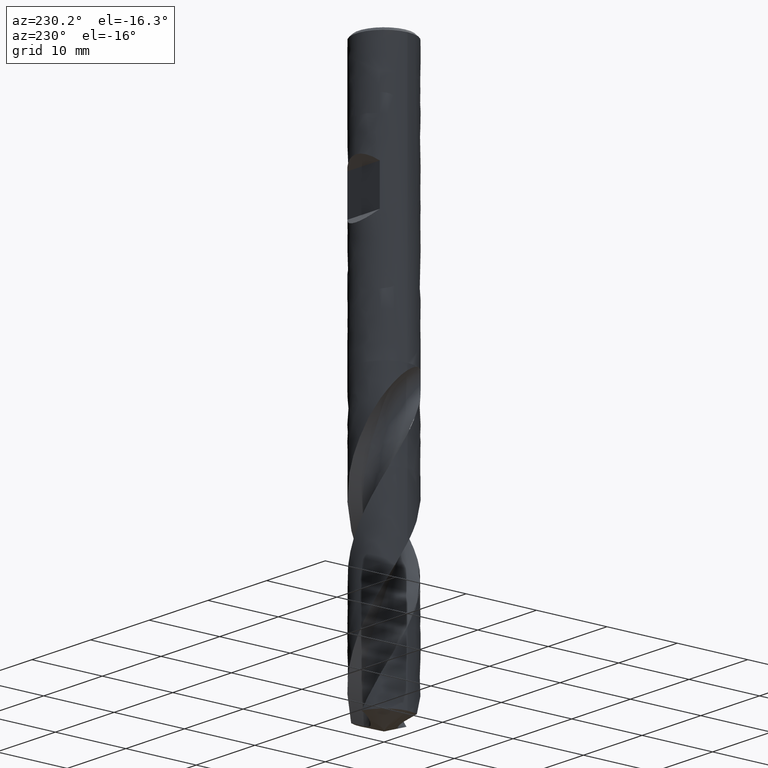
[diagram: clean part render]
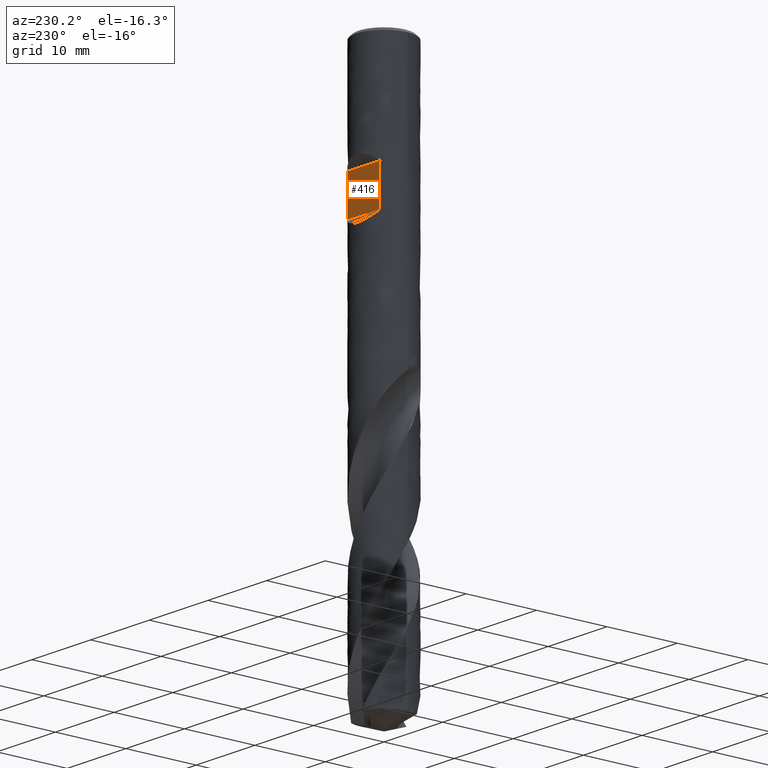
[diagram: same view with one face highlighted and labeled with its STEP entity id]
A machine part, auxiliary view. The second image highlights one B-rep face of the part: STEP entity #416.
In plain terms, the highlighted planar face has unit normal (0, 1, 0).
Its self-contained STEP definition (entity closure, byte-faithful):
#230 = VERTEX_POINT('', #231);
#231 = CARTESIAN_POINT('', (-2.75499546279118, 2.9, -15.25));
#232 = VERTEX_POINT('', #233);
#233 = CARTESIAN_POINT('', (2.75499546279118, 2.9, -15.25));
#306 = EDGE_CURVE('', #230, #307, #309, .T.);
#307 = VERTEX_POINT('', #308);
#308 = CARTESIAN_POINT('', (-2.75499546279118, 2.9, -20.75));
#309 = LINE('', #310, #311);
#310 = CARTESIAN_POINT('', (-2.75499546279118, 2.9, -15.25));
#311 = VECTOR('', #312, 5.5);
#312 = DIRECTION('', (-4.44089209850063E-16, 0., -5.5));
#315 = VERTEX_POINT('', #316);
#316 = CARTESIAN_POINT('', (2.75499546279118, 2.9, -20.75));
#392 = EDGE_CURVE('', #232, #315, #393, .T.);
#393 = LINE('', #394, #395);
#394 = CARTESIAN_POINT('', (2.75499546279118, 2.9, -15.25));
#395 = VECTOR('', #396, 5.5);
#396 = DIRECTION('', (0., 4.44089209850063E-16, -5.5));
#416 = ADVANCED_FACE('', (#417), #433, .T.);
#417 = FACE_OUTER_BOUND('', #418, .T.);
#418 = EDGE_LOOP('', (#419, #420, #426, #427));
#419 = ORIENTED_EDGE('', *, *, #392, .T.);
#420 = ORIENTED_EDGE('', *, *, #421, .T.);
#421 = EDGE_CURVE('', #315, #307, #422, .T.);
#422 = LINE('', #423, #424);
#423 = CARTESIAN_POINT('', (2.75499546279118, 2.9, -20.75));
#424 = VECTOR('', #425, 5.50999092558237);
#425 = DIRECTION('', (-5.50999092558237, 4.44089209850063E-16, 0.));
#426 = ORIENTED_EDGE('', *, *, #306, .F.);
#427 = ORIENTED_EDGE('', *, *, #428, .F.);
#428 = EDGE_CURVE('', #232, #230, #429, .T.);
#429 = LINE('', #430, #431);
#430 = CARTESIAN_POINT('', (2.75499546279118, 2.9, -15.25));
#431 = VECTOR('', #432, 5.50999092558237);
#432 = DIRECTION('', (-5.50999092558237, 4.44089209850063E-16, 0.));
#433 = PLANE('', #434);
#434 = AXIS2_PLACEMENT_3D('', #435, #436, #437);
#435 = CARTESIAN_POINT('', (4., 2.9, -20.75));
#436 = DIRECTION('', (1.11022302462516E-16, 1., 8.07434927000114E-17));
#437 = DIRECTION('', (-1., 1.11022302462516E-16, 0.));